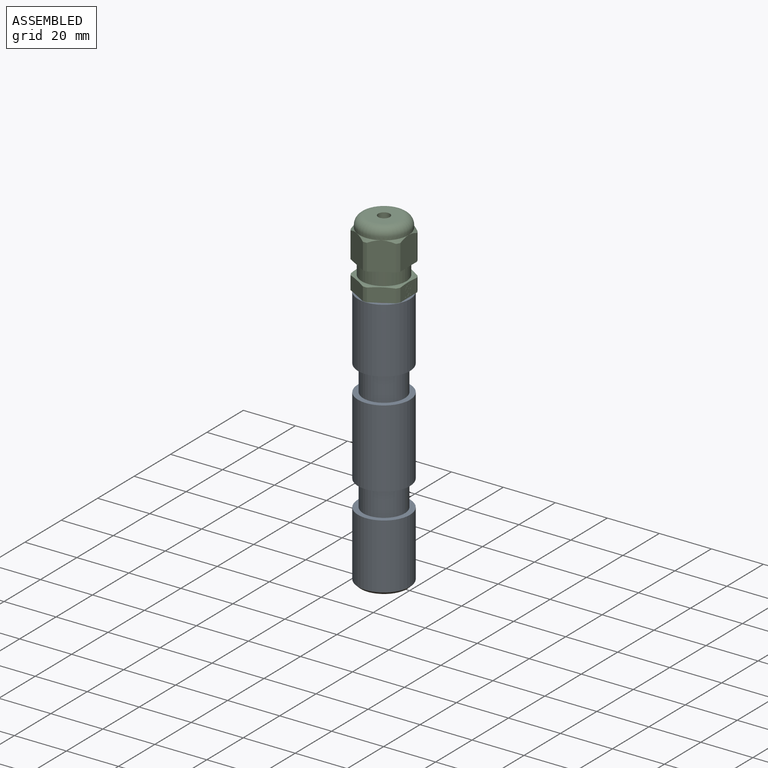
[diagram: assembled view]
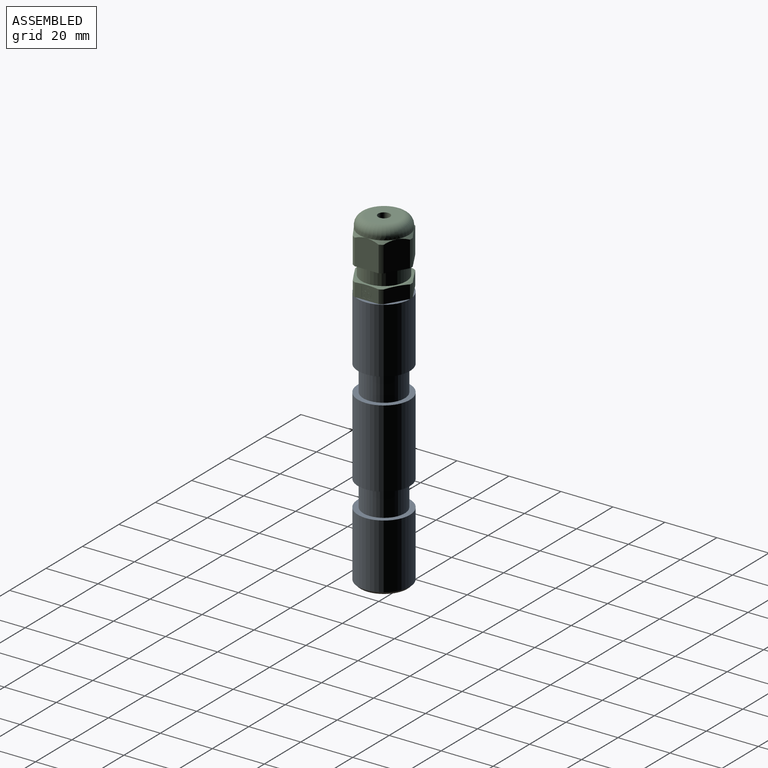
[diagram: assembled view, second angle]
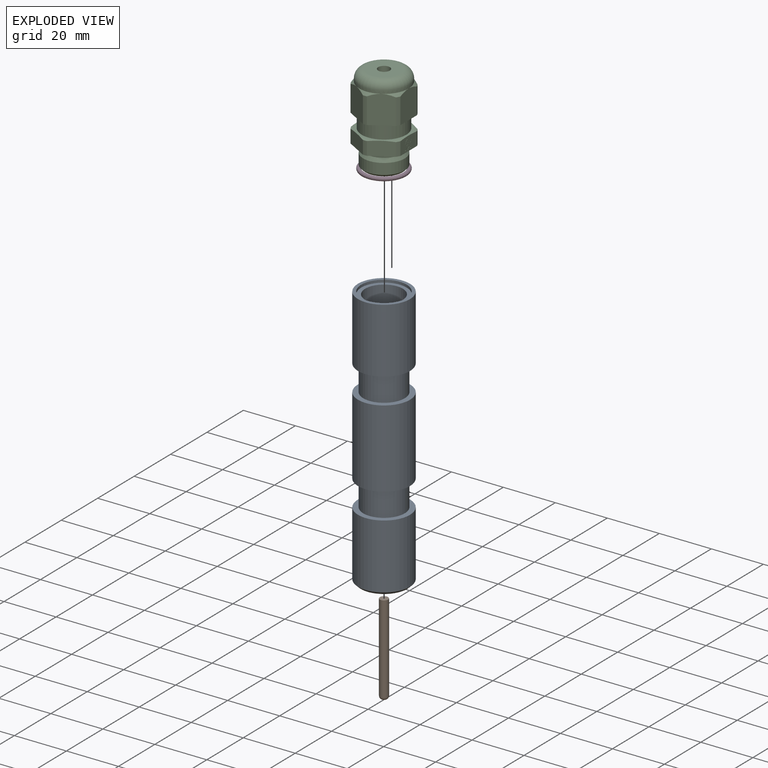
[diagram: exploded view]
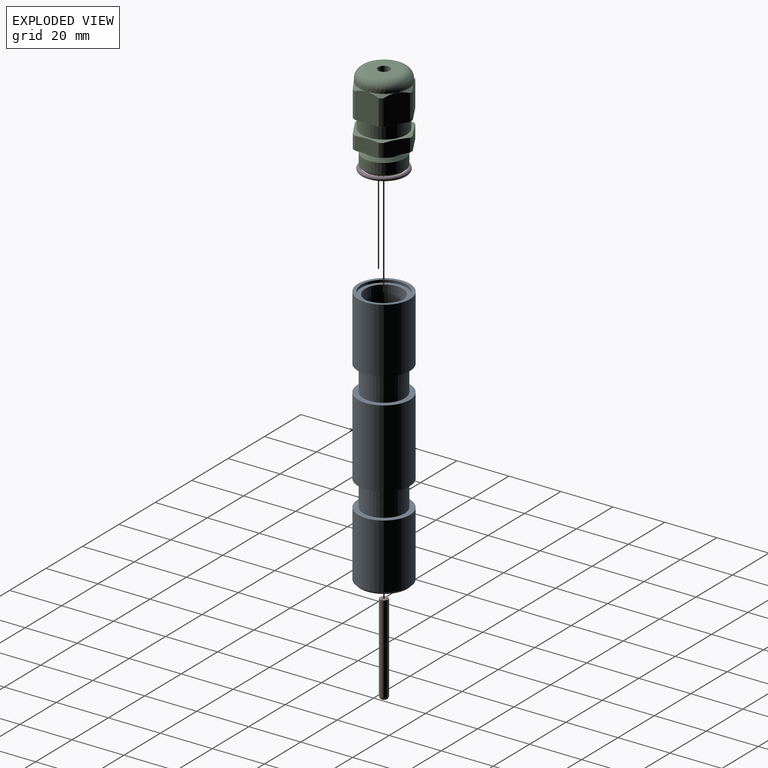
[diagram: exploded view, second angle]
ASSEMBLY  parts=4 mates=3
PART A: 20 faces, bbox 20x20x101 mm
  f0: plane 20x20mm, normal (0,0,-1), area 113.1mm2, adj f1,f10
  f1: cylinder r=10mm len=30mm, axis (0,0,1), area 1885mm2, adj f0,f2
  f2: plane 20x20mm, normal (0,0,1), area 113.1mm2, adj f1,f3
  f3: cylinder r=8mm len=16mm, axis (0,0,1), area 502.7mm2, adj f2,f4
  f4: plane 20x20mm, normal (0,0,-1), area 113.1mm2, adj f3,f5
  f5: cylinder r=10mm len=25mm, axis (0,0,1), area 1570.8mm2, adj f4,f6
  f6: plane 20x20mm, normal (0,0,1), area 73.6mm2, adj f5,f11
  f7: plane 18x18mm, normal (0,0,-1), area 254.5mm2, adj f19
  f8: cylinder r=10mm len=25mm, axis (0,0,1), area 1570.8mm2, adj f9,f19
  f9: plane 20x20mm, normal (0,0,1), area 113.1mm2, adj f8,f10
  f10: cylinder r=8mm len=16mm, axis (0,0,1), area 502.7mm2, adj f0,f9
  f11: cylinder r=8.75mm len=17.5mm, axis (0,0,1), area 55mm2, adj f6,f12
  f12: plane 17.5x17.5mm, normal (0,0,1), area 75.4mm2, adj f11,f18
  f13: plane 3.2x3.2mm, normal (0,0,1), area 8mm2, adj f14
  f14: cylinder r=1.6mm len=36mm, axis (0,0,1), area 361.9mm2, adj f13,f15
  f15: plane 12x12mm, normal (0,0,1), area 105.1mm2, adj f14,f16
  f16: cylinder r=6mm len=49.25mm, axis (0,0,1), area 1856.6mm2, adj f15,f17
  f17: cone r=0mm half-angle=59deg, axis (0,0,1), area 60.7mm2, adj f16,f18
  f18: cylinder r=7.25mm len=14.5mm, axis (0,0,1), area 410mm2, adj f12,f17
  f19: cone r=10mm half-angle=45deg, axis (0,0,1), area 84.4mm2, adj f7,f8
PART B: 4 faces, bbox 3.2x3.2x35 mm
  f0: cylinder r=1.6mm len=33.8mm, axis (0,0,1), area 339.8mm2, adj f2,f3
  f1: plane 0.8x0.8mm, normal (0,0,-1), area 0.5mm2, adj f3
  f2: plane 3.2x3.2mm, normal (0,0,1), area 8mm2, adj f0
  f3: torus R=0.4mm, axis (0,0,1), area 13.8mm2, adj f0,f1
PART C: 85 faces, bbox 34.8x21.9x21.9 mm
  f0: plane 11.77x8.71mm, normal (0,-0.87,-0.5), area 97.8mm2, adj f1,f11,f12,f81,f82
  f1: cylinder r=10.55mm len=9.96mm, axis (1,0,0), area 15.5mm2, adj f0,f2,f12,f81
  f2: plane 11.77x9.93mm, normal (0,0,-1), area 97.8mm2, adj f1,f3,f12,f80,f81
  f3: cylinder r=10.55mm len=9.96mm, axis (1,0,0), area 15.5mm2, adj f2,f4,f12,f80
  f4: plane 11.77x8.71mm, normal (0,0.87,-0.5), area 97.8mm2, adj f3,f5,f12,f79,f80
  f5: cylinder r=10.55mm len=9.96mm, axis (1,0,0), area 15.5mm2, adj f4,f6,f12,f79
  f6: plane 11.77x8.71mm, normal (0,0.87,0.5), area 97.8mm2, adj f5,f7,f12,f79,f84
  f7: cylinder r=10.55mm len=9.96mm, axis (1,0,0), area 15.5mm2, adj f6,f8,f12,f84
  f8: plane 11.77x9.93mm, normal (0,0,1), area 97.8mm2, adj f7,f9,f12,f83,f84
  f9: cylinder r=10.55mm len=9.96mm, axis (1,0,0), area 15.5mm2, adj f8,f10,f12,f83
  f10: plane 11.77x8.71mm, normal (0,-0.87,0.5), area 97.8mm2, adj f9,f11,f12,f82,f83
  f11: cylinder r=10.55mm len=9.96mm, axis (1,0,0), area 15.5mm2, adj f0,f10,f12,f82
  f12: plane 21.1x19mm, normal (-1,0,0), area 78.4mm2, adj f0,f1,f2,f3,f4,f5,f6,f7
  f13: cylinder r=8.6mm len=17.2mm, axis (-1,0,0), area 143.2mm2, adj f12,f14,f15
  f14: cylinder r=8.6mm len=17.2mm, axis (-1,0,0), area 143.2mm2, adj f12,f13,f15
  f15: plane 19x19mm, normal (1,0,0), area 51.2mm2, adj f13,f14,f16,f18,f20,f22,f29,f31
  f16: cone r=9.5mm half-angle=75deg, axis (-1,0,0), area 6.4mm2, adj f15,f17,f27,f28
  f17: plane 8.52x5.97mm, normal (0,0.87,-0.5), area 48.7mm2, adj f16,f18,f24,f26,f27
  f18: cone r=9.5mm half-angle=75deg, axis (-1,0,0), area 6.4mm2, adj f15,f17,f19,f26
  f19: plane 9.75x5.97mm, normal (0,0,-1), area 48.7mm2, adj f18,f20,f24,f25,f26
  f20: cone r=9.5mm half-angle=75deg, axis (-1,0,0), area 6.4mm2, adj f15,f19,f21,f25
  f21: plane 8.52x5.97mm, normal (0,-0.87,-0.5), area 48.7mm2, adj f20,f22,f23,f24,f25
  f22: cone r=9.5mm half-angle=75deg, axis (-1,0,0), area 6.4mm2, adj f15,f21,f23,f32
  f23: cylinder r=10.55mm len=5.12mm, axis (-1,0,0), area 8mm2, adj f21,f22,f24,f32
  f24: plane 21.1x19mm, normal (-1,0,0), area 148.3mm2, adj f17,f19,f21,f23,f25,f26,f27,f28
  f25: cylinder r=10.55mm len=5.12mm, axis (-1,0,0), area 8mm2, adj f19,f20,f21,f24
  f26: cylinder r=10.55mm len=5.12mm, axis (-1,0,0), area 8mm2, adj f17,f18,f19,f24
  f27: cylinder r=10.55mm len=5.12mm, axis (-1,0,0), area 8mm2, adj f16,f17,f24,f28
  f28: plane 8.52x5.97mm, normal (0,0.87,0.5), area 48.7mm2, adj f16,f24,f27,f29,f34
  f29: cone r=9.5mm half-angle=75deg, axis (-1,0,0), area 6.4mm2, adj f15,f28,f30,f34
  f30: plane 9.75x5.97mm, normal (0,0,1), area 33mm2, adj f24,f29,f31,f33,f34,f35,f36,f37
  f31: cone r=9.5mm half-angle=75deg, axis (-1,0,0), area 6.4mm2, adj f15,f30,f32,f33
  f32: plane 8.52x5.97mm, normal (0,-0.87,0.5), area 48.7mm2, adj f22,f23,f24,f31,f33
  f33: cylinder r=10.55mm len=5.12mm, axis (-1,0,0), area 8mm2, adj f24,f30,f31,f32
  f34: cylinder r=10.55mm len=5.12mm, axis (-1,0,0), area 8mm2, adj f24,f28,f29,f30
  f35: plane 3.96x0.04mm, normal (1,0,0), area 0.2mm2, adj f30,f36,f38,f39
  f36: plane 3.96x0.04mm, normal (0,-1,0), area 0.2mm2, adj f30,f35,f37,f39
  f37: plane 3.96x0.04mm, normal (-1,0,0), area 0.2mm2, adj f30,f36,f38,f39
  f38: plane 3.96x0.04mm, normal (0,1,0), area 0.2mm2, adj f30,f35,f37,f39
  f39: plane 3.96x3.96mm, normal (0,0,1), area 11.4mm2, adj f35,f36,f37,f38,f40,f41,f42,f44
  f40: cylinder r=1.8mm len=1.73mm, axis (0,0,-1), area 0.1mm2, adj f39,f41,f43,f46
  f41: plane 0.11x0.08mm, normal (0.81,-0.59,0), area 0mm2, adj f39,f40,f42,f43
  f42: cylinder r=0.6mm len=1.2mm, axis (0,0,-1), area 0.1mm2, adj f39,f41,f43,f60
  f43: plane 3.6x3.59mm, normal (0,0,1), area 4.3mm2, adj f40,f41,f42,f44,f45,f46,f47,f48
  f44: plane 0.13x0.04mm, normal (-0.31,-0.95,0), area 0mm2, adj f39,f43,f45,f47
  f45: cylinder r=0.6mm len=1.2mm, axis (0,0,-1), area 0.1mm2, adj f39,f43,f44,f46
  f46: plane 0.13x0.04mm, normal (0.31,0.95,0), area 0mm2, adj f39,f40,f43,f45
  f47: cylinder r=1.8mm len=1.47mm, axis (0,0,-1), area 0.1mm2, adj f39,f43,f44,f48
  f48: plane 0.14x0.04mm, normal (1,0,0), area 0mm2, adj f39,f43,f47,f49
  f49: cylinder r=0.6mm len=1.2mm, axis (0,0,-1), area 0.1mm2, adj f39,f43,f48,f50
  f50: plane 0.14x0.04mm, normal (-1,0,0), area 0mm2, adj f39,f43,f49,f51
  f51: cylinder r=1.8mm len=1.47mm, axis (0,0,-1), area 0.1mm2, adj f39,f43,f50,f52
  f52: plane 0.13x0.04mm, normal (0.31,-0.95,0), area 0mm2, adj f39,f43,f51,f53
  f53: cylinder r=0.6mm len=1.2mm, axis (0,0,-1), area 0.1mm2, adj f39,f43,f52,f54
  f54: plane 0.13x0.04mm, normal (-0.31,0.95,0), area 0mm2, adj f39,f43,f53,f55
  f55: cylinder r=1.8mm len=1.73mm, axis (0,0,-1), area 0.1mm2, adj f39,f43,f54,f56
  f56: plane 0.11x0.08mm, normal (-0.81,-0.59,0), area 0mm2, adj f39,f43,f55,f57
  f57: cylinder r=0.6mm len=1.2mm, axis (0,0,-1), area 0.1mm2, adj f39,f43,f56,f58
  f58: plane 0.11x0.08mm, normal (0.81,0.59,0), area 0mm2, adj f39,f43,f57,f59
  f59: cylinder r=1.8mm len=1.81mm, axis (0,0,-1), area 0.1mm2, adj f39,f43,f58,f60
  f60: plane 0.11x0.08mm, normal (-0.81,0.59,0), area 0mm2, adj f39,f42,f43,f59
  f61: cylinder r=7.19mm len=14.38mm, axis (-1,0,0), area 36.1mm2, adj f24,f62,f64
  f62: cylinder r=7.19mm len=14.38mm, axis (-1,0,0), area 36.1mm2, adj f24,f61,f63
  f63: cone r=7.19mm half-angle=30deg, axis (-1,0,0), area 38.7mm2, adj f62,f64,f66
  f64: cone r=7.19mm half-angle=30deg, axis (-1,0,0), area 38.7mm2, adj f61,f63,f65
  f65: cylinder r=8mm len=16mm, axis (-1,0,0), area 105.2mm2, adj f64,f66,f68
  f66: cylinder r=8mm len=16mm, axis (-1,0,0), area 105.2mm2, adj f63,f65,f67
  f67: cone r=8mm half-angle=45deg, axis (1,0,0), area 27.3mm2, adj f66,f68,f69
  f68: cone r=8mm half-angle=45deg, axis (1,0,0), area 27.3mm2, adj f65,f67,f69
  f69: plane 14.38x14.38mm, normal (-1,0,0), area 115.6mm2, adj f67,f68,f70,f71
  f70: cone r=3.86mm half-angle=4deg, axis (-1,0,0), area 221.2mm2, adj f69,f71,f73
  f71: cone r=3.86mm half-angle=4deg, axis (-1,0,0), area 221.2mm2, adj f69,f70,f72
  f72: cylinder r=2.25mm len=11mm, axis (-1,0,0), area 77.8mm2, adj f71,f73,f74
  f73: cylinder r=2.25mm len=11mm, axis (-1,0,0), area 77.8mm2, adj f70,f72,f74
  f74: plane 12.6x12.6mm, normal (1,0,0), area 108.8mm2, adj f72,f73,f75,f76
  f75: torus R=6.3mm, axis (1,0,0), area 131.7mm2, adj f74,f76,f78
  f76: torus R=6.3mm, axis (1,0,0), area 131.7mm2, adj f74,f75,f77
  f77: cylinder r=9.5mm len=19mm, axis (-1,0,0), area 32.5mm2, adj f76,f78,f79,f82,f83,f84
  f78: cylinder r=9.5mm len=19mm, axis (-1,0,0), area 32.5mm2, adj f75,f77,f79,f80,f81,f82
  f79: cone r=9.5mm half-angle=45deg, axis (-1,0,0), area 8.8mm2, adj f4,f5,f6,f77,f78
  f80: cone r=9.5mm half-angle=45deg, axis (-1,0,0), area 8.8mm2, adj f2,f3,f4,f78
  f81: cone r=9.5mm half-angle=45deg, axis (-1,0,0), area 8.8mm2, adj f0,f1,f2,f78
  f82: cone r=9.5mm half-angle=45deg, axis (-1,0,0), area 8.8mm2, adj f0,f10,f11,f77,f78
  f83: cone r=9.5mm half-angle=45deg, axis (-1,0,0), area 8.8mm2, adj f8,f9,f10,f77
  f84: cone r=9.5mm half-angle=45deg, axis (-1,0,0), area 8.8mm2, adj f6,f7,f8,f77
PART D: 1 faces, bbox 19x19x1.5 mm
  f0: torus R=8mm, axis (0,0,1), area 237mm2
PLACE A t=(-37.77,5.59,-9.76)mm
PLACE B t=(83.5,-55.63,13.09)mm
PLACE C rot(axis=(0.71,0,0.71),180deg) t=(-37.77,5.59,84.03)mm
PLACE D t=(71.39,47.77,91.34)mm
MATE fastened C.f1 <-> A.f11  axis (0,0,1) through (-37.77,5.59,84.84)mm
MATE fastened B.f0 <-> A.f1  axis (0,0,-1) through (-37.77,5.59,-4.41)mm
MATE fastened D.f0 <-> A.f11  axis (0,0,1) through (-37.77,5.59,91.34)mm
